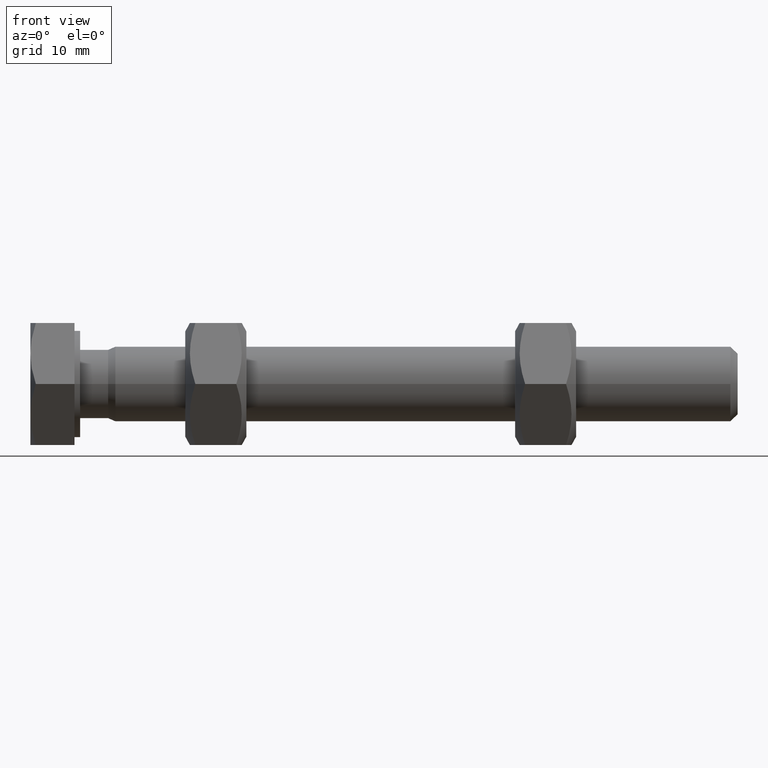
[diagram: clean part render]
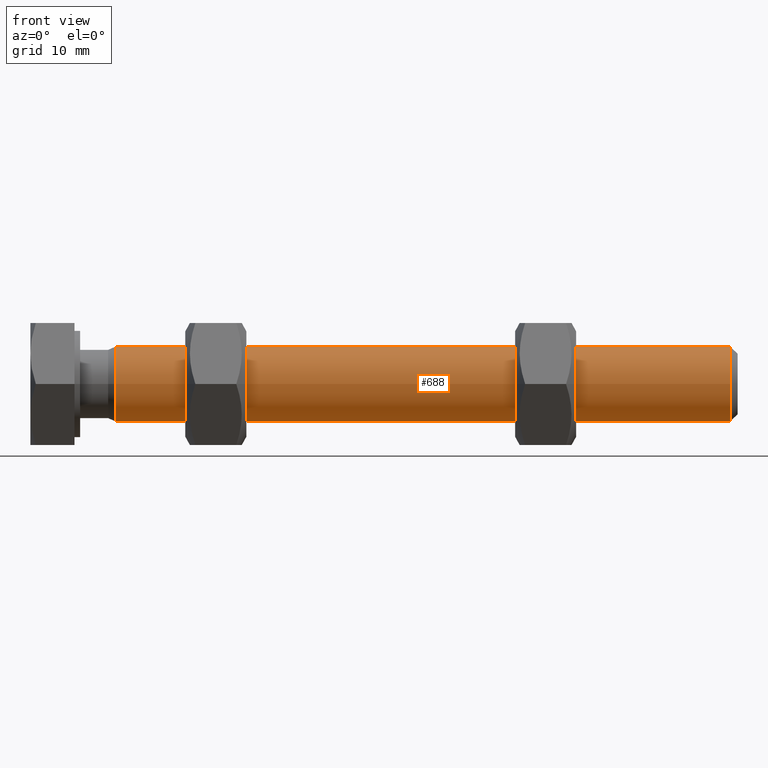
[diagram: same view with one face highlighted and labeled with its STEP entity id]
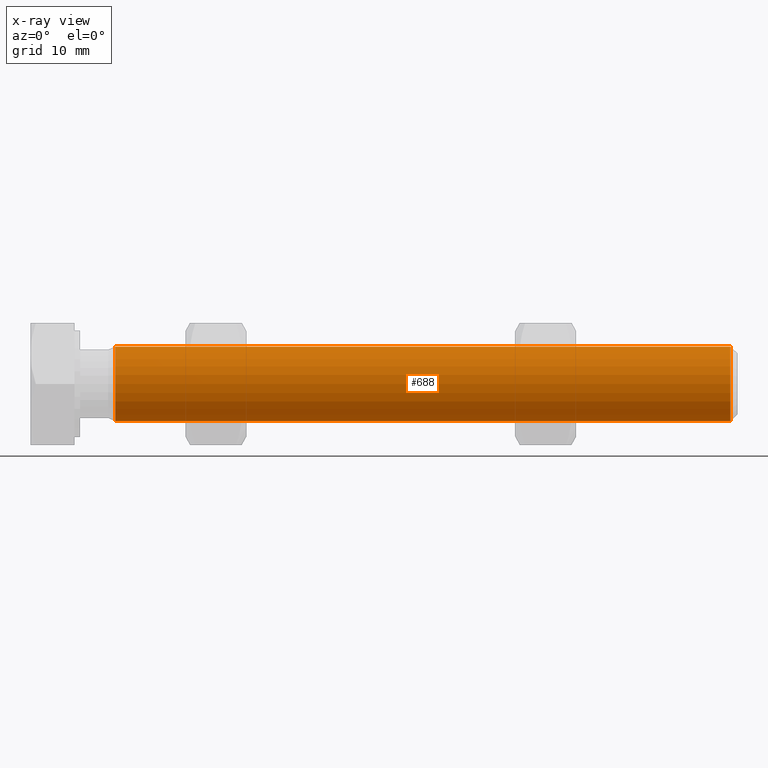
[diagram: x-ray of the same camera — body ghosted, the highlighted face saturated]
A machine part, front view. The second image highlights one B-rep face of the part: STEP entity #688.
The next image is the same camera in x-ray: the body ghosted, the highlighted face saturated — about 0% of this face is hidden behind the body in this view.
In plain terms, the highlighted cylindrical surface (bore or boss wall) has radius 4 mm, axis along (1, 0, 0).
Its self-contained STEP definition (entity closure, byte-faithful):
#87=CYLINDRICAL_SURFACE('',#763,4.);
#93=FACE_OUTER_BOUND('',#140,.T.);
#140=EDGE_LOOP('',(#470,#471,#472,#473,#474));
#193=LINE('',#1036,#232);
#232=VECTOR('',#847,4.);
#270=CIRCLE('',#760,4.);
#271=CIRCLE('',#761,4.);
#273=CIRCLE('',#764,4.);
#298=VERTEX_POINT('',#1027);
#299=VERTEX_POINT('',#1028);
#301=VERTEX_POINT('',#1035);
#362=EDGE_CURVE('',#298,#299,#270,.T.);
#363=EDGE_CURVE('',#299,#298,#271,.T.);
#366=EDGE_CURVE('',#299,#301,#193,.T.);
#367=EDGE_CURVE('',#301,#301,#273,.T.);
#470=ORIENTED_EDGE('',*,*,#362,.F.);
#471=ORIENTED_EDGE('',*,*,#363,.F.);
#472=ORIENTED_EDGE('',*,*,#366,.T.);
#473=ORIENTED_EDGE('',*,*,#367,.T.);
#474=ORIENTED_EDGE('',*,*,#366,.F.);
#688=ADVANCED_FACE('',(#93),#87,.T.);
#760=AXIS2_PLACEMENT_3D('',#1029,#838,#839);
#761=AXIS2_PLACEMENT_3D('',#1030,#840,#841);
#763=AXIS2_PLACEMENT_3D('',#1034,#845,#846);
#764=AXIS2_PLACEMENT_3D('',#1037,#848,#849);
#838=DIRECTION('center_axis',(1.,1.25804130546575E-16,0.));
#839=DIRECTION('ref_axis',(1.25804130546575E-16,-1.,0.));
#840=DIRECTION('center_axis',(1.,1.25804130546575E-16,0.));
#841=DIRECTION('ref_axis',(1.25804130546575E-16,-1.,0.));
#845=DIRECTION('center_axis',(1.,1.25804130546575E-16,0.));
#846=DIRECTION('ref_axis',(-1.25804130546575E-16,1.,0.));
#847=DIRECTION('',(-1.,-1.25804130546575E-16,0.));
#848=DIRECTION('center_axis',(1.,1.25804130546575E-16,0.));
#849=DIRECTION('ref_axis',(-1.25804130546575E-16,1.,0.));
#1027=CARTESIAN_POINT('',(69.2330875,4.00000000000001,4.89858719658942E-16));
#1028=CARTESIAN_POINT('',(69.2330875,-3.99999999999999,-4.89858719658941E-16));
#1029=CARTESIAN_POINT('Origin',(69.2330875,6.56485738748314E-15,0.));
#1030=CARTESIAN_POINT('Origin',(69.2330875,6.56485738748314E-15,0.));
#1034=CARTESIAN_POINT('Origin',(36.875,2.49407632339564E-15,0.));
#1035=CARTESIAN_POINT('',(3.75000000000001,-4.,-4.89858719658941E-16));
#1036=CARTESIAN_POINT('',(36.875,-4.,-4.89858719658941E-16));
#1037=CARTESIAN_POINT('Origin',(3.75000000000001,-1.67318550095966E-15,
0.));